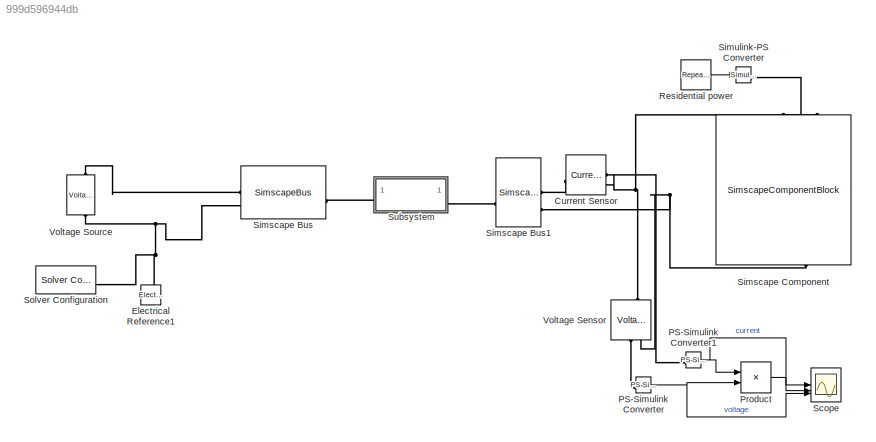
MODEL slx_999d596944db
KIND model
CONFIG AbsTol = auto
CONFIG EnableMultiTasking = off
CONFIG FixedStep = auto
CONFIG MaxStep = auto
CONFIG MinStep = auto
CONFIG RelTol = 1e-3
CONFIG SampleTimeConstraint = Unconstrained
CONFIG SolverName = VariableStepAuto
CONFIG StartTime = 0.0
CONFIG StopTime = 24
BLOCK [Reference] Current Sensor  REF=fl_lib/Electrical/Electrical Sensors/Current Sensor
  SourceBlock = fl_lib/Electrical/Electrical Sensors/Current Sensor
  SourceType = Current Sensor
BLOCK [Reference] Electrical Reference1  REF=fl_lib/Electrical/Electrical Elements/Electrical Reference
  NameLocation = right
  SourceBlock = fl_lib/Electrical/Electrical Elements/Electrical Reference
  SourceType = Electrical Reference
BLOCK [Reference] PS-Simulink Converter  REF=nesl_utility/PS-Simulink
Converter
  SourceBlock = nesl_utility/PS-Simulink\nConverter
  SourceType = PS-Simulink\nConverter
BLOCK [Reference] PS-Simulink Converter1  REF=nesl_utility/PS-Simulink
Converter
  SourceBlock = nesl_utility/PS-Simulink\nConverter
  SourceType = PS-Simulink\nConverter
BLOCK [Product] Product
BLOCK [Reference] Residential power   REF=simulink/Sources/Repeating
Sequence
Interpolated
  NameLocation = top
  SourceBlock = simulink/Sources/Repeating\nSequence\nInterpolated
  SourceType = Repeating Sequence Interpolated
BLOCK [Scope] Scope
  Floating = off
  NumInputPorts = 3
  ScopeSpecificationString = Simulink.scopes.TimeScopeBlockCfg('CurrentConfiguration', extmgr.ConfigurationSet(extmgr.Configuration('Core','General UI',true),extmgr.Configuration('Core','Source UI',true),extmgr.Configuration('Sources','WiredSimulink',true),extmgr.Configuration('Visuals','Time Domain',true,'SerializedDisplays',{struct('MinYLimReal','-47.51598','MaxYLimReal','447.66178','YLabelReal','','MinYLimMag','0.00000','M...<+1471ch>
BLOCK [SimscapeBus] Simscape Bus
  HierarchyStrings = High;Low
BLOCK [SimscapeBus] Simscape Bus1
  HierarchyStrings = High;Low
  NameLocation = top
BLOCK [SimscapeComponentBlock] Simscape Component
  ClassName = ResidentialPowerLoad
  ComponentPath = ResidentialPowerLoad
  ComponentVariantNames = ["ResidentialPowerLoad"]
  ComponentVariants = ["ResidentialPowerLoad"]
  CopyFcn = simscape.engine.sli.internal.componentblockcallback(gcbh,'COPY')
  InternalSimscapePortConfiguration = {"Bottom":[],"Left":[{"id":"Power","label":"P","type":"input"},{"id":"p","label":"+","type":"foundation.electrical.electrical"}],"Right":[{"id":"n","label":"-","type":"foundation.electrical.electrical"}],"Top":[]}
  MaskType = ResidentialPowerLoad
  NameLocation = left
  PreCopyFcn = simscape.engine.sli.internal.componentblockcallback(gcbh,'PRECOPY')
  PreDeleteFcn = simscape.engine.sli.internal.componentblockcallback(gcbh,'PREDELETE')
  SchemaVersion = 1
  SourceFile = ResidentialPowerLoad
  i = 0
  i_nominal_specify = off
  i_nominal_unit = A
  i_nominal_value = 1
  i_priority = None
  i_specify = off
  i_unit = A
  v = 0
  v_nominal_specify = off
  v_nominal_unit = V
  v_nominal_value = 1
  v_priority = None
  v_specify = off
  v_unit = V
BLOCK [Reference] Simulink-PS Converter  REF=nesl_utility/Simulink-PS
Converter
  SourceBlock = nesl_utility/Simulink-PS\nConverter
  SourceType = Simulink-PS\nConverter
BLOCK [Reference] Solver Configuration  REF=nesl_utility/Solver
Configuration
  SourceBlock = nesl_utility/Solver\nConfiguration
  SourceType = Solver\nConfiguration
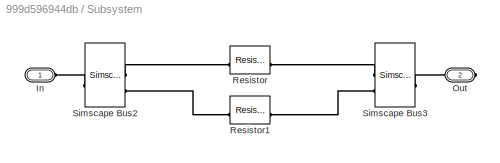
BLOCK [SubSystem] Subsystem
BLOCK [PMIOPort] Subsystem/In
  Side = Left
BLOCK [PMIOPort] Subsystem/Out
  Port = 2
  Side = Right
BLOCK [Reference] Subsystem/Resistor  REF=fl_lib/Electrical/Electrical Elements/Resistor
  SourceBlock = fl_lib/Electrical/Electrical Elements/Resistor
  SourceType = Resistor
BLOCK [Reference] Subsystem/Resistor1  REF=fl_lib/Electrical/Electrical Elements/Resistor
  SourceBlock = fl_lib/Electrical/Electrical Elements/Resistor
  SourceType = Resistor
BLOCK [SimscapeBus] Subsystem/Simscape Bus2
  HierarchyStrings = High;Low
  NameLocation = top
BLOCK [SimscapeBus] Subsystem/Simscape Bus3
  HierarchyStrings = High;Low
BLOCK [Reference] Voltage Sensor  REF=fl_lib/Electrical/Electrical Sensors/Voltage Sensor
  NameLocation = right
  SourceBlock = fl_lib/Electrical/Electrical Sensors/Voltage Sensor
  SourceType = Voltage Sensor
BLOCK [Reference] Voltage Source  REF=ee_lib/Sources/Voltage Source
  NameLocation = right
  SourceBlock = ee_lib/Sources/Voltage Source
  SourceType = Voltage Source
NET PS-Simulink Converter1:1 -> Product:1, Scope:1
NET PS-Simulink Converter:1 -> Product:2, Scope:3
LINE Product:1 -> Scope:2
LINE Residential power :1 -> Simulink-PS Converter:1
PLINE Current Sensor:LConn1 -- Simscape Bus1:LConn1
PLINE Current Sensor:RConn1 -- PS-Simulink Converter1:LConn1
PNET net1: Current Sensor:RConn2 -- Simscape Component:LConn2 -- Voltage Sensor:LConn1
PNET net2: Electrical Reference1:LConn1 -- Simscape Bus:LConn2 -- Solver Configuration:RConn1 -- Voltage Source:RConn1
PLINE PS-Simulink Converter:LConn1 -- Voltage Sensor:RConn1
PNET net3: Simscape Bus1:LConn2 -- Simscape Component:RConn1 -- Voltage Sensor:RConn2
PLINE Simscape Bus1:RConn1 -- Subsystem:RConn1
PLINE Simscape Bus:LConn1 -- Voltage Source:LConn1
PLINE Simscape Bus:RConn1 -- Subsystem:LConn1
PLINE Simscape Component:LConn1 -- Simulink-PS Converter:RConn1
PLINE Subsystem/In:RConn1 -- Subsystem/Simscape Bus2:RConn1
PLINE Subsystem/Out:RConn1 -- Subsystem/Simscape Bus3:RConn1
PLINE Subsystem/Resistor1:LConn1 -- Subsystem/Simscape Bus2:LConn2
PLINE Subsystem/Resistor1:RConn1 -- Subsystem/Simscape Bus3:LConn2
PLINE Subsystem/Resistor:LConn1 -- Subsystem/Simscape Bus2:LConn1
PLINE Subsystem/Resistor:RConn1 -- Subsystem/Simscape Bus3:LConn1
note: NET lines group one-source signal fan-out (src -> all destinations, sorted); 1:1 wires keep LINE; PNET lines group multi-terminal physical nets as a canonical sorted terminal list (undirected conserving connections); 2-terminal nets keep the pairwise PLINE form
